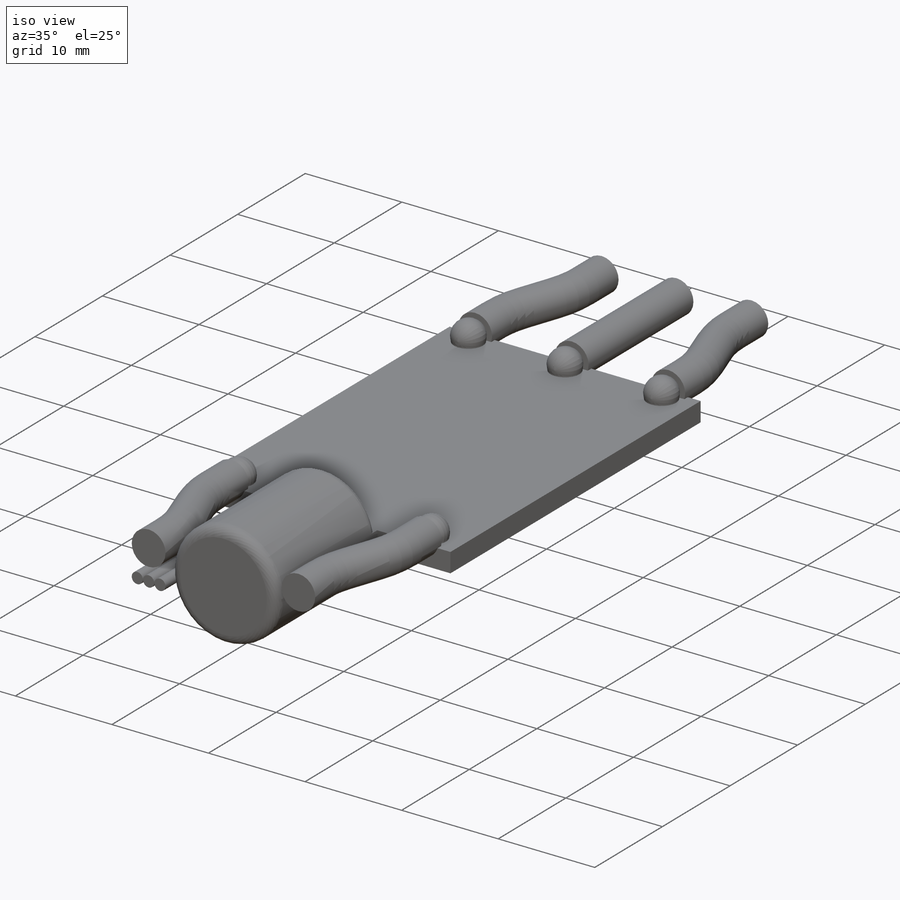
[diagram: iso view]
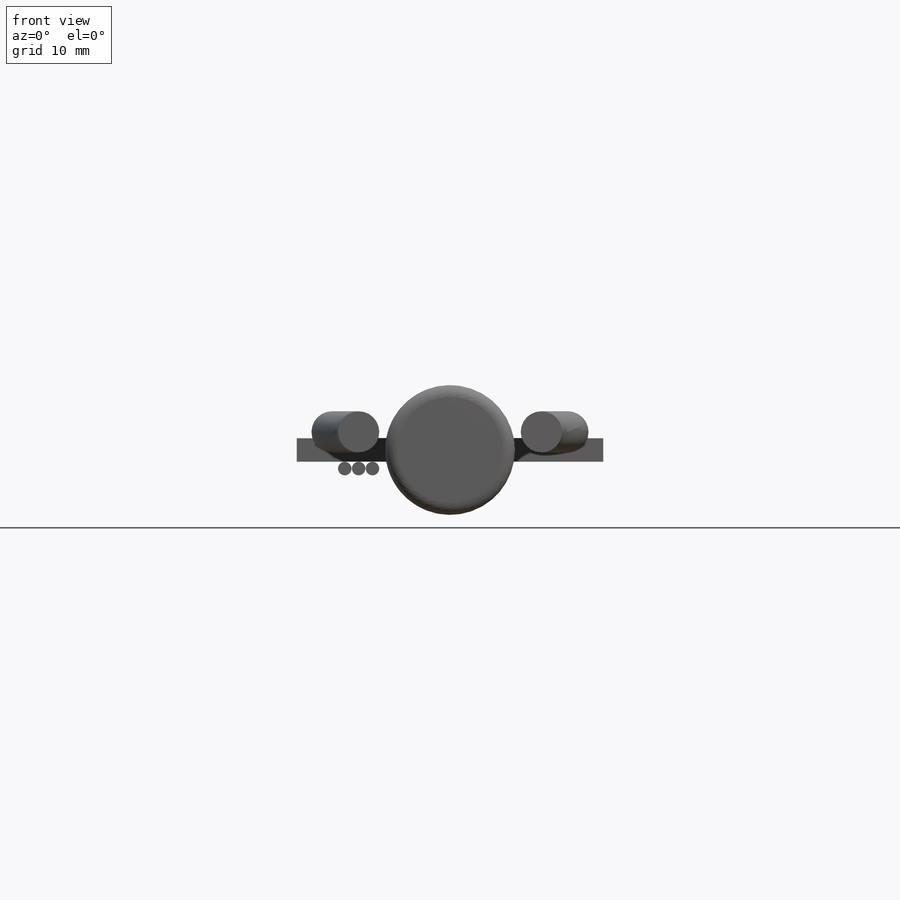
[diagram: front view]
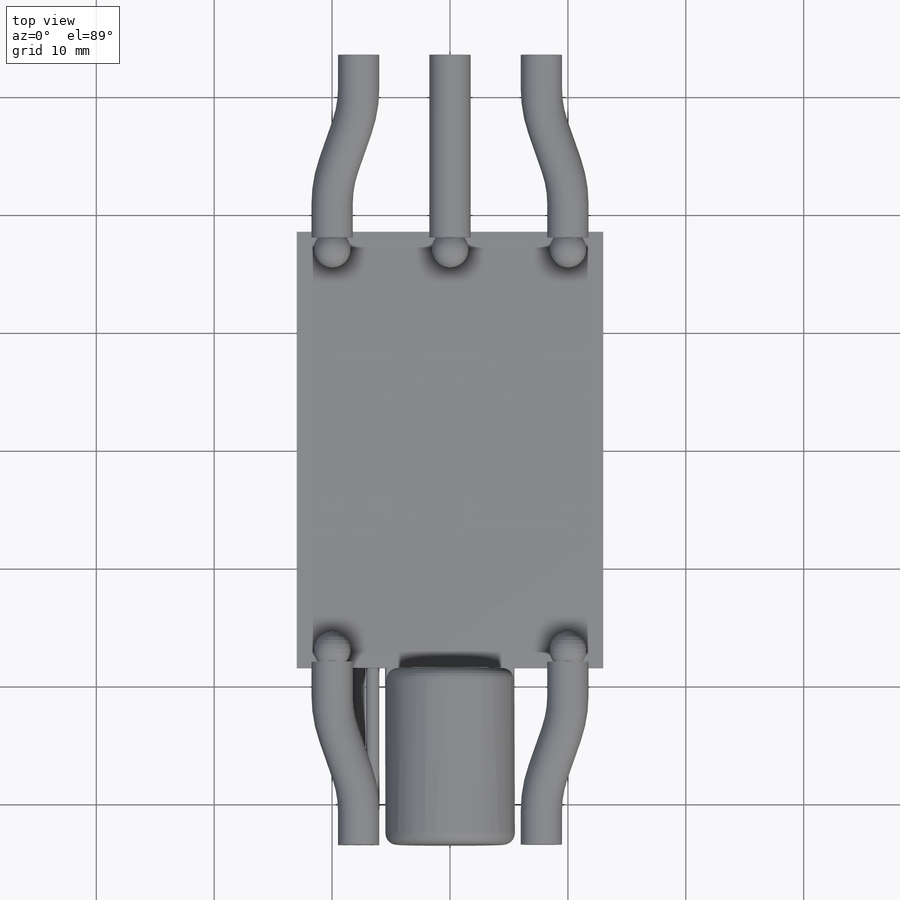
[diagram: top view]
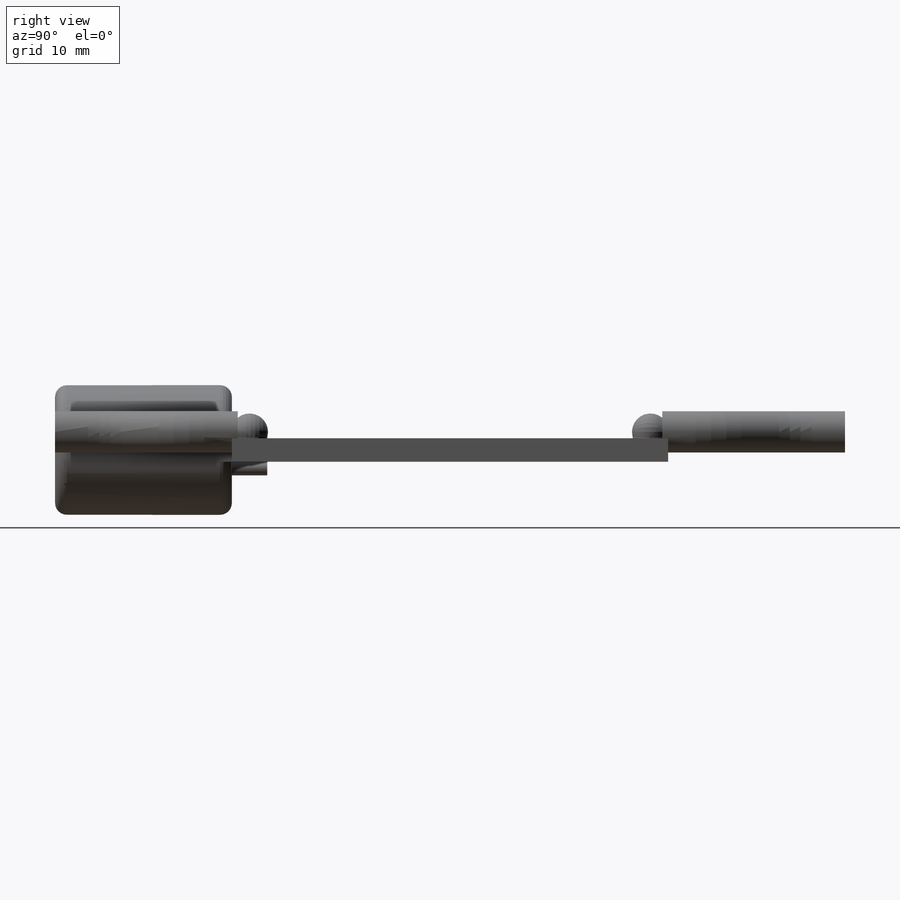
[diagram: right view]
SOLIDWORKS PART (.sldprt)
format: sldprt  version: not decoded by parser v0  size: 502,272 bytes
history: native  units: mm
features: sketch x9, extrude x5, dome x5, plane x3, cut_extrude x2, mirror x2, material x1, sweep x1, fillet x1 (+11 scaffold rows collapsed)
feature tree (40):
  scaffold x11  (default folders/planes/origin — collapsed)
  material  "Material <not specified>"
  sketch  "Sketch1"  dims[c1.D1=~106.745302mm c1.D2=~60.215299mm c2.D1=26.0mm c2.D2=37.0mm]
  extrude  "Boss-Extrude1"  Depth=2mm
  sketch  "Sketch2"  dims[D1=11.0mm]
  extrude  "Boss-Extrude2"  Depth=15mm
  sketch  "Sketch4"  dims[c1.D1=~4.436469mm c1.D2=3.0mm c1.D3=~3.204508mm c2.D1=3.0mm c2.D3=~7.678157mm]
  extrude  "Boss-Extrude3"  Depth=0.1mm
  dome  "Dome1"
  dome  "Dome2"
  dome  "Dome3"
  dome  "Dome4"
  dome  "Dome5"
  plane  "Plane1"  Offset=0.5mm
  sketch  "Sketch5"  dims[c1.D1=~6.992943mm c1.D2=~11.248126mm c2.D1=~3.807293mm c2.D2=~6.303264mm c3.D1=~4.152331mm c3.D2=~6.69426mm c4.D1=4.0mm c4.D2=6.0mm c4.D3=6.0mm]
  cut_extrude  "Cut-Extrude1"  [1 undecoded]
  plane  "Plane2"  Offset=0.5mm
  sketch  "Sketch6"  dims[c1.D1=~4.389408mm c1.D2=~25.607713mm c2.D1=4.0mm]
  cut_extrude  "Cut-Extrude2"  [1 undecoded]
  plane  "Plane3"  Offset=3mm
  sketch  "Sketch7"  dims[c1.D1=1.15mm c1.D2=1.15mm c1.D3=1.15mm c2.D1=~1.681351mm c2.D2=3.5mm c2.D3=3.5mm]
  extrude  "Boss-Extrude4"  [1 undecoded]
  sketch  "Sketch8"  dims[D1=3.5mm D2=3.5mm]
  sketch  "Sketch9"  dims[c1.D1=10.0mm c1.D2=10.0mm c2.D1=~15.537792mm]
  sweep  "Sweep1"
  mirror  "Mirror1"
  mirror  "Mirror2"
  sketch  "Sketch11"  dims[D1=3.5mm]
  extrude  "Boss-Extrude5"  [1 undecoded]
  fillet  "Fillet1"  Radius=1mm
decode coverage: 13 of 25 modeling features carry decoded parameters
note: ~ marks probable driven/reference dimensions
note: 4 parameter values undecoded
summary: no parameter record found for 4 features
note: suppression state not decoded; provenance and decode notes live in map.json
